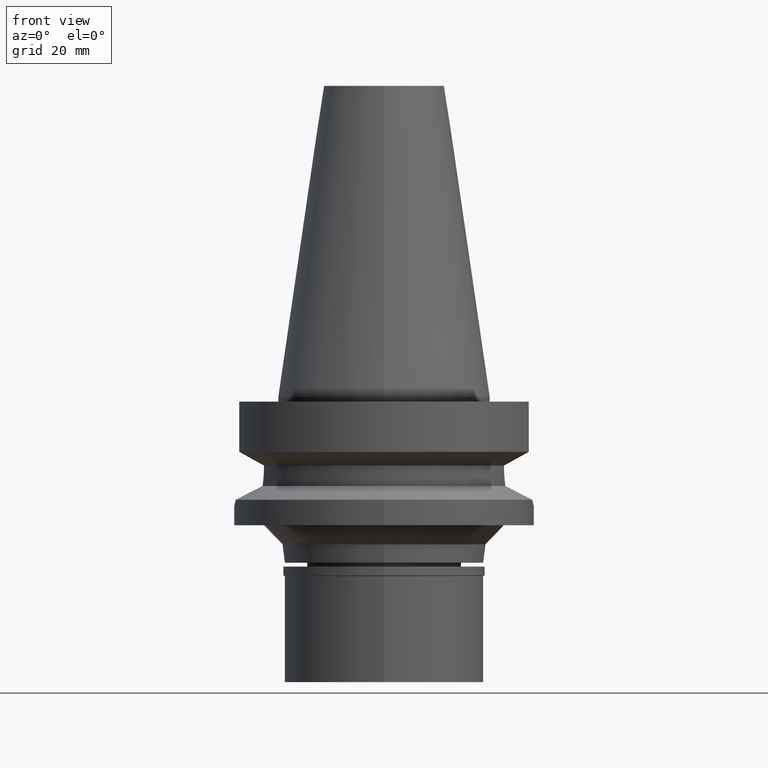
[diagram: clean part render]
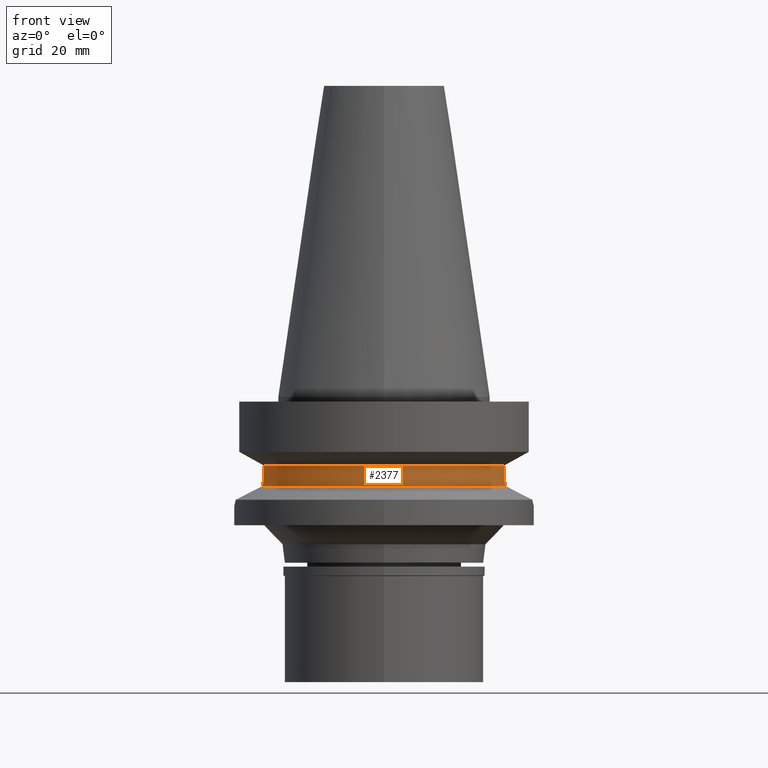
[diagram: same view with one face highlighted and labeled with its STEP entity id]
A machine part, front view. The second image highlights one B-rep face of the part: STEP entity #2377.
In plain terms, the highlighted cylindrical surface (partial cylindrical patch) has radius 26.5 mm, axis along (0, 0, -1).
Its self-contained STEP definition (entity closure, byte-faithful):
#13 = DIRECTION ( 'NONE',  ( 0.0000000000000000000, 0.0000000000000000000, -1.000000000000000000 ) ) ;
#29 = DIRECTION ( 'NONE',  ( 0.9527442516822307583, -0.3037735849057093818, 0.0000000000000000000 ) ) ;
#91 = VERTEX_POINT ( 'NONE', #534 ) ;
#101 = VECTOR ( 'NONE', #1221, 1000.000000000000114 ) ;
#125 = DIRECTION ( 'NONE',  ( 0.0000000000000000000, -1.000000000000000000, 0.0000000000000000000 ) ) ;
#183 = CARTESIAN_POINT ( 'NONE',  ( -25.24772266958000344, -8.050000000000000711, -14.94999999999999929 ) ) ;
#208 = CARTESIAN_POINT ( 'NONE',  ( 25.27268721373958371, -7.971796898640264750, -16.08126439300963639 ) ) ;
#211 = CIRCLE ( 'NONE', #1073, 26.50000000000000711 ) ;
#220 = DIRECTION ( 'NONE',  ( -0.9634623335000935818, -0.2678438573619981722, 0.0000000000000000000 ) ) ;
#236 = CARTESIAN_POINT ( 'NONE',  ( 25.24772266958000344, -8.050000000000000711, -14.94999999999999929 ) ) ;
#238 = B_SPLINE_CURVE_WITH_KNOTS ( 'NONE', 3,
 ( #2816, #1401, #1580, #1119, #1089, #2051, #3035, #1337, #2542, #870, #887, #2303, #413, #183 ),
 .UNSPECIFIED., .F., .F.,
 ( 4, 2, 2, 1, 1, 2, 2, 4 ),
 ( 0.0000000000000000000, 0.2500000000000133782, 0.3750000000000213163, 0.4375000000000240363, 0.4687500000000240918, 0.4843750000000253686, 0.5000000000000266454, 1.000000000000000000 ),
 .UNSPECIFIED. ) ;
#239 = CARTESIAN_POINT ( 'NONE',  ( 25.24772266958000344, -8.050000000000000711, -14.94999999999999929 ) ) ;
#252 = VERTEX_POINT ( 'NONE', #2243 ) ;
#322 = CARTESIAN_POINT ( 'NONE',  ( 25.31649706320713022, -7.831262302043771939, -16.81393877542647175 ) ) ;
#330 = EDGE_CURVE ( 'NONE', #484, #91, #2673, .T. ) ;
#358 = DIRECTION ( 'NONE',  ( 0.0000000000000000000, 0.0000000000000000000, -1.000000000000000000 ) ) ;
#389 = VERTEX_POINT ( 'NONE', #1846 ) ;
#413 = CARTESIAN_POINT ( 'NONE',  ( -25.24772266957999634, -8.049999999999979394, -15.58990582806755398 ) ) ;
#447 = DIRECTION ( 'NONE',  ( 0.0000000000000000000, 0.0000000000000000000, 1.000000000000000000 ) ) ;
#484 = VERTEX_POINT ( 'NONE', #855 ) ;
#496 = CARTESIAN_POINT ( 'NONE',  ( 25.53175183775000079, -7.097862220092999941, -18.74774300138999905 ) ) ;
#534 = CARTESIAN_POINT ( 'NONE',  ( 25.53175183775000079, -7.097862220092999941, -18.74774300138999905 ) ) ;
#539 = CARTESIAN_POINT ( 'NONE',  ( 25.36815874793582992, -7.663791245584273604, -17.48814129407832141 ) ) ;
#624 = AXIS2_PLACEMENT_3D ( 'NONE', #1721, #358, #125 ) ;
#642 = ORIENTED_EDGE ( 'NONE', *, *, #2300, .F. ) ;
#709 = DIRECTION ( 'NONE',  ( -2.972031873860120860E-06, 9.321376992457373856E-06, 0.9999999999521393956 ) ) ;
#750 = LINE ( 'NONE', #1884, #1918 ) ;
#759 = CARTESIAN_POINT ( 'NONE',  ( 25.32119310062510209, -7.816055872885958600, -16.87669021870241082 ) ) ;
#817 = EDGE_CURVE ( 'NONE', #484, #252, #238, .T. ) ;
#855 = CARTESIAN_POINT ( 'NONE',  ( -25.53175183775000079, -7.097862220092999941, -18.74774300138999905 ) ) ;
#859 = ORIENTED_EDGE ( 'NONE', *, *, #877, .T. ) ;
#870 = CARTESIAN_POINT ( 'NONE',  ( -25.32546100062935679, -7.802196480338490225, -16.93206928540818268 ) ) ;
#877 = EDGE_CURVE ( 'NONE', #1478, #389, #211, .T. ) ;
#887 = CARTESIAN_POINT ( 'NONE',  ( -25.32415077929965719, -7.806445795312512814, -16.91528421260400705 ) ) ;
#956 = CARTESIAN_POINT ( 'NONE',  ( 25.31203562611613123, -7.845693926006510388, -16.75295273496641002 ) ) ;
#1073 = AXIS2_PLACEMENT_3D ( 'NONE', #1168, #13, #29 ) ;
#1089 = CARTESIAN_POINT ( 'NONE',  ( -25.37568864340297736, -7.637841086871763885, -17.49779646605935213 ) ) ;
#1119 = CARTESIAN_POINT ( 'NONE',  ( -25.39160756134142360, -7.584934398583156323, -17.65162641216541317 ) ) ;
#1130 = CARTESIAN_POINT ( 'NONE',  ( 25.28048863378946365, -7.947021833588224560, -16.24412758178397098 ) ) ;
#1160 = CARTESIAN_POINT ( 'NONE',  ( 25.25396380561988607, -8.030903546293970408, -15.59366754646399400 ) ) ;
#1168 = CARTESIAN_POINT ( 'NONE',  ( 0.0000000000000000000, 1.065333950388000029E-14, -14.45225699861000024 ) ) ;
#1221 = DIRECTION ( 'NONE',  ( 9.895351151130952236E-07, 3.103543285031980802E-06, -0.9999999999946943552 ) ) ;
#1337 = CARTESIAN_POINT ( 'NONE',  ( -25.33288387036077083, -7.778102131032761157, -17.02514599129927575 ) ) ;
#1401 = CARTESIAN_POINT ( 'NONE',  ( -25.48480250143130021, -7.266743887086228426, -18.43210847757043425 ) ) ;
#1458 = CARTESIAN_POINT ( 'NONE',  ( 25.29453118987922622, -7.902064242008846939, -16.48842005659398779 ) ) ;
#1478 = VERTEX_POINT ( 'NONE', #2897 ) ;
#1487 = CARTESIAN_POINT ( 'NONE',  ( 25.31952011347645382, -7.821476031033693488, -16.85458649000659648 ) ) ;
#1541 = CYLINDRICAL_SURFACE ( 'NONE', #624, 26.50000000000000000 ) ;
#1580 = CARTESIAN_POINT ( 'NONE',  ( -25.44389776528931790, -7.408340107180626966, -18.11686868423986496 ) ) ;
#1688 = LINE ( 'NONE', #2213, #101 ) ;
#1716 = CARTESIAN_POINT ( 'NONE',  ( 25.43787059316623811, -7.435562863551551160, -18.11659112037981245 ) ) ;
#1721 = CARTESIAN_POINT ( 'NONE',  ( 0.0000000000000000000, 2.097758734598999898E-14, 71.29500000000000171 ) ) ;
#1846 = CARTESIAN_POINT ( 'NONE',  ( -25.24772414878000149, -8.049995360679998768, -14.45229244909999977 ) ) ;
#1884 = CARTESIAN_POINT ( 'NONE',  ( -25.24772266958000344, -8.050000000000000711, -14.94999999999999929 ) ) ;
#1918 = VECTOR ( 'NONE', #709, 1000.000000000000114 ) ;
#2002 = VERTEX_POINT ( 'NONE', #239 ) ;
#2051 = CARTESIAN_POINT ( 'NONE',  ( -25.35407699156156625, -7.708962562370444083, -17.26964265290226308 ) ) ;
#2213 = CARTESIAN_POINT ( 'NONE',  ( 25.24772217703000265, -8.050001544803999209, -14.45224519494000148 ) ) ;
#2215 = ORIENTED_EDGE ( 'NONE', *, *, #817, .F. ) ;
#2243 = CARTESIAN_POINT ( 'NONE',  ( -25.24772266958000344, -8.050000000000000711, -14.94999999999999929 ) ) ;
#2264 = FACE_OUTER_BOUND ( 'NONE', #2946, .T. ) ;
#2300 = EDGE_CURVE ( 'NONE', #252, #389, #750, .T. ) ;
#2303 = CARTESIAN_POINT ( 'NONE',  ( -25.27267878703948156, -7.973310748591815766, -16.24511349492755485 ) ) ;
#2327 = CARTESIAN_POINT ( 'NONE',  ( 25.24772266958000699, -8.050000000000002487, -15.26994624127543254 ) ) ;
#2333 = AXIS2_PLACEMENT_3D ( 'NONE', #2577, #447, #220 ) ;
#2347 = ORIENTED_EDGE ( 'NONE', *, *, #3047, .F. ) ;
#2372 = B_SPLINE_CURVE_WITH_KNOTS ( 'NONE', 3,
 ( #236, #2327, #1160, #208, #1130, #1458, #2386, #956, #322, #1487, #759, #539, #1716, #496 ),
 .UNSPECIFIED., .F., .F.,
 ( 4, 2, 2, 1, 1, 2, 2, 4 ),
 ( 0.0000000000000000000, 0.2499999999999921174, 0.3749999999999881761, 0.4374999999999861222, 0.4687499999999850675, 0.4843749999999844569, 0.4999999999999838463, 1.000000000000000000 ),
 .UNSPECIFIED. ) ;
#2377 = ADVANCED_FACE ( 'NONE', ( #2264 ), #1541, .T. ) ;
#2386 = CARTESIAN_POINT ( 'NONE',  ( 25.30213757442783518, -7.877637162928092351, -16.61056528421136846 ) ) ;
#2418 = ORIENTED_EDGE ( 'NONE', *, *, #2977, .F. ) ;
#2528 = ORIENTED_EDGE ( 'NONE', *, *, #330, .T. ) ;
#2542 = CARTESIAN_POINT ( 'NONE',  ( -25.32840181445860139, -7.792653841590092334, -16.96926092299040079 ) ) ;
#2577 = CARTESIAN_POINT ( 'NONE',  ( 0.0000000000000000000, 0.0000000000000000000, -18.74774300138999905 ) ) ;
#2673 = CIRCLE ( 'NONE', #2333, 26.49999999999998224 ) ;
#2816 = CARTESIAN_POINT ( 'NONE',  ( -25.53175183775000079, -7.097862220092999941, -18.74774300138999905 ) ) ;
#2897 = CARTESIAN_POINT ( 'NONE',  ( 25.24772266958000344, -8.050000000000000711, -14.45225699861000024 ) ) ;
#2946 = EDGE_LOOP ( 'NONE', ( #2215, #2528, #2418, #2347, #859, #642 ) ) ;
#2977 = EDGE_CURVE ( 'NONE', #2002, #91, #2372, .T. ) ;
#3035 = CARTESIAN_POINT ( 'NONE',  ( -25.34383784690743369, -7.742464100972826557, -17.15621186860311198 ) ) ;
#3047 = EDGE_CURVE ( 'NONE', #1478, #2002, #1688, .T. ) ;